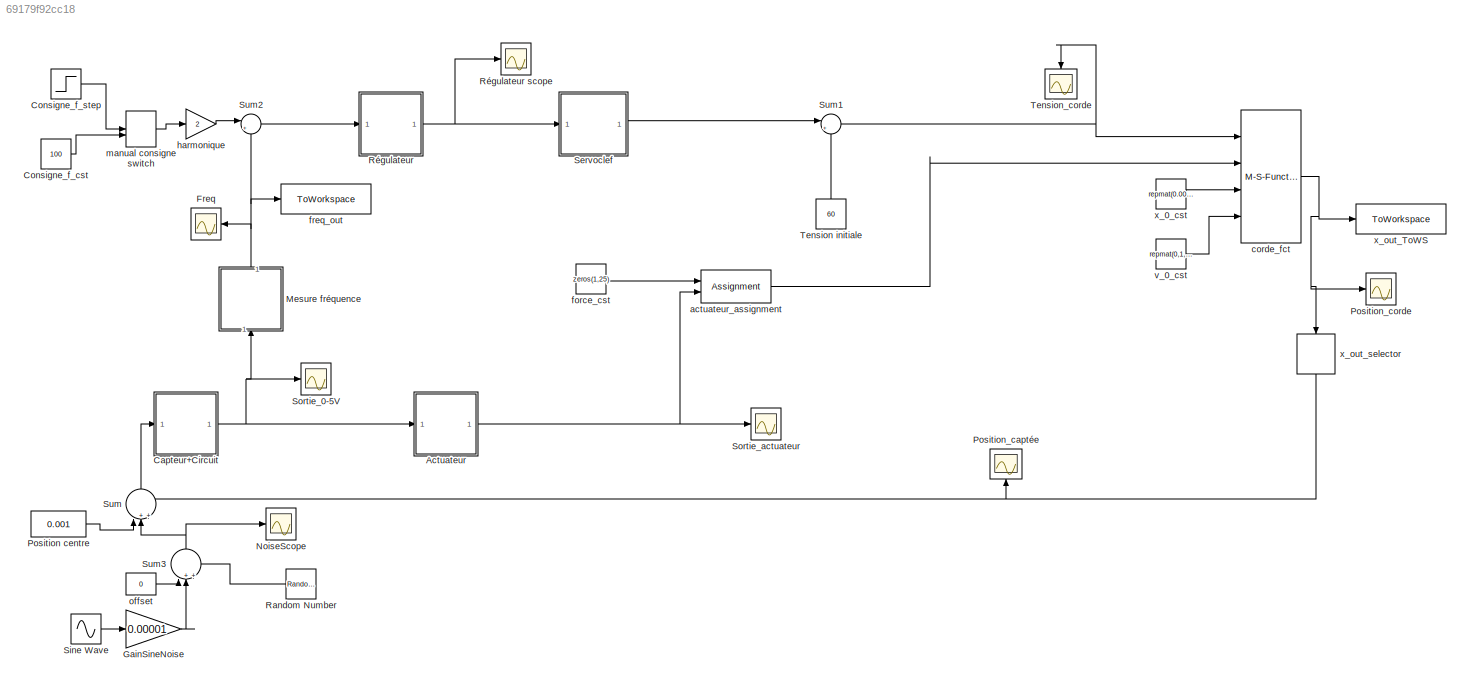
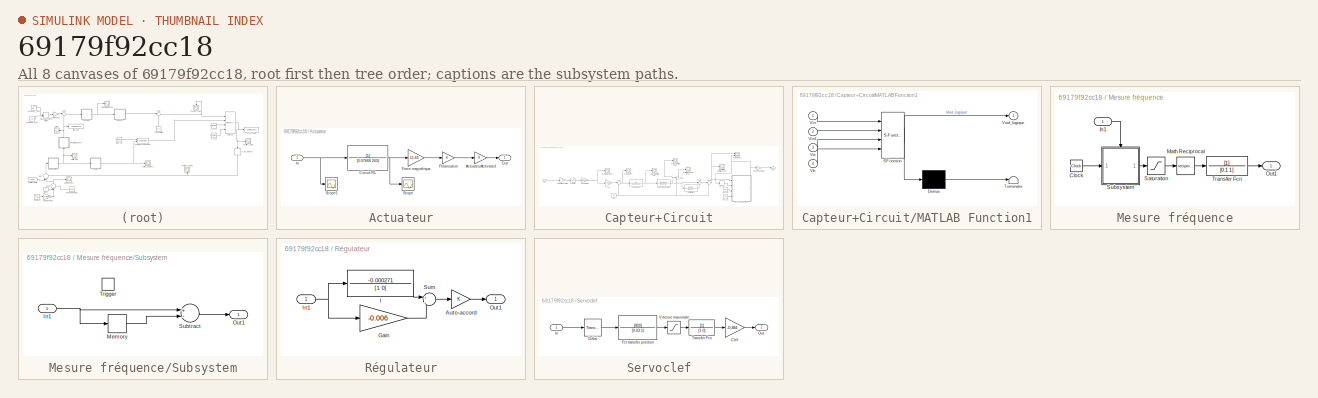
[diagram: thumbnail index - all 8 canvases of the model, root first then tree order]
MODEL slx_69179f92cc18
KIND model
CONFIG AbsTol = auto
CONFIG EnableMultiTasking = off
CONFIG FixedStep = 0.0001
CONFIG MaxStep = auto
CONFIG MinStep = auto
CONFIG RelTol = 1e-3
CONFIG SampleTimeConstraint = Unconstrained
CONFIG Solver = FixedStepAuto
CONFIG SolverName = FixedStepAuto
CONFIG StartTime = 0.0
CONFIG StopTime = 7
BLOCK [SubSystem] Actuateur
  Ports = [1, 1]
  RequestExecContextInheritance = off
BLOCK [Gain] Actuateur/ActuateurActivated
  OutDataTypeStr = Inherit: Inherit via internal rule
  ParamDataTypeStr = Inherit: Inherit via internal rule
  SaturateOnIntegerOverflow = off
BLOCK [TransferFcn] Actuateur/Circuit RL
  Denominator = [0.07668 263]
BLOCK [Gain] Actuateur/Force magnétique
  Gain = 11.65
  OutDataTypeStr = Inherit: Inherit via internal rule
  ParamDataTypeStr = Inherit: Inherit via internal rule
  SaturateOnIntegerOverflow = off
BLOCK [Inport] Actuateur/In
  IconDisplay = Port number
BLOCK [Outport] Actuateur/Out
  IconDisplay = Port number
BLOCK [Gain] Actuateur/Polarisation
  OutDataTypeStr = Inherit: Inherit via internal rule
  ParamDataTypeStr = Inherit: Inherit via internal rule
  SaturateOnIntegerOverflow = off
BLOCK [Scope] Actuateur/Scope
  Floating = off
  NumInputPorts = 1
  Ports = [1]
  ScopeSpecificationString = Simulink.scopes.TimeScopeBlockCfg('CurrentConfiguration', extmgr.ConfigurationSet(extmgr.Configuration('Core','General UI',true),extmgr.Configuration('Core','Source UI',true),extmgr.Configuration('Sources','WiredSimulink',true),extmgr.Configuration('Visuals','Time Domain',true,'SerializedDisplays',{struct('MinYLimReal','-0.00492','MaxYLimReal','0.02151','YLabelReal','','MinYLimMag','0.00000','MaxY...<+1405ch>
BLOCK [Scope] Actuateur/Scope1
  Floating = off
  NumInputPorts = 1
  Ports = [1]
  ScopeSpecificationString = Simulink.scopes.TimeScopeBlockCfg('CurrentConfiguration', extmgr.ConfigurationSet(extmgr.Configuration('Core','General UI',true),extmgr.Configuration('Core','Source UI',true),extmgr.Configuration('Sources','WiredSimulink',true,'DataLoggingVariableName','ScopeData1'),extmgr.Configuration('Visuals','Time Domain',true,'SerializedDisplays',{struct('MinYLimReal','-6.25','MaxYLimReal','6.25','YLabelReal...<+1419ch>
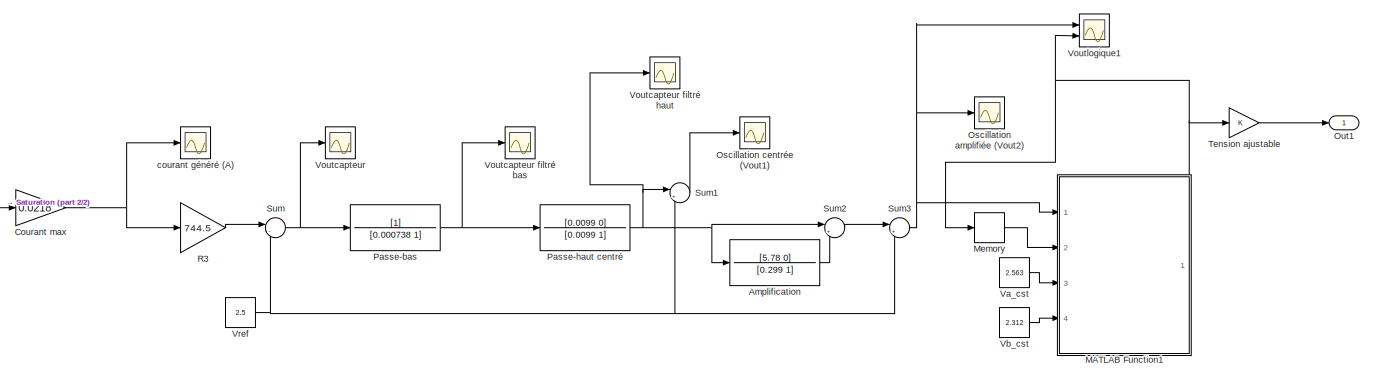
[diagram: Capteur+Circuit - part 1/2, most of the canvas]
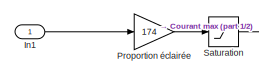
[diagram: Capteur+Circuit - part 2/2, middle left region]
BLOCK [SubSystem] Capteur+Circuit
  Ports = [1, 1]
  RequestExecContextInheritance = off
BLOCK [TransferFcn] Capteur+Circuit/Amplification 
  Denominator = [0.299 1]
  Numerator = [5.78 0]
BLOCK [Gain] Capteur+Circuit/Courant max
  Gain = 0.0218
  OutDataTypeStr = Inherit: Inherit via internal rule
  ParamDataTypeStr = Inherit: Inherit via internal rule
  SaturateOnIntegerOverflow = off
BLOCK [Inport] Capteur+Circuit/In1
  IconDisplay = Port number
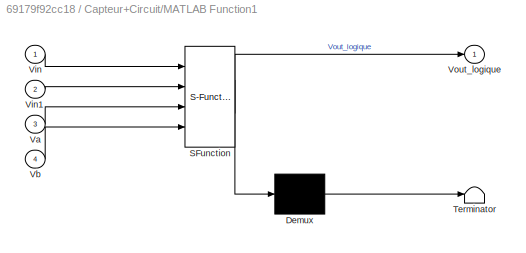
BLOCK [SubSystem] Capteur+Circuit/MATLAB Function1
  ErrorFcn = Stateflow.Translate.translate
  PermitHierarchicalResolution = ExplicitOnly
  Ports = [4, 1]
  RequestExecContextInheritance = off
  SFBlockType = MATLAB Function
  TreatAsAtomicUnit = on
BLOCK [Demux] Capteur+Circuit/MATLAB Function1/ Demux 
  Outputs = 1
  Ports = [1, 1]
BLOCK [S-Function] Capteur+Circuit/MATLAB Function1/ SFunction 
  EnableBusSupport = on
  FunctionName = sf_sfun
  PortCounts = [4 2]
  Ports = [4, 2]
  SFcnIsStateOwnerBlock = off
  SFunctionDeploymentMode = off
  Tag = Stateflow S-Function 1
BLOCK [Terminator] Capteur+Circuit/MATLAB Function1/ Terminator 
BLOCK [Inport] Capteur+Circuit/MATLAB Function1/Va
  IconDisplay = Port number
  Port = 3
BLOCK [Inport] Capteur+Circuit/MATLAB Function1/Vb
  IconDisplay = Port number
  Port = 4
BLOCK [Inport] Capteur+Circuit/MATLAB Function1/Vin
  IconDisplay = Port number
BLOCK [Inport] Capteur+Circuit/MATLAB Function1/Vin1
  IconDisplay = Port number
  Port = 2
BLOCK [Outport] Capteur+Circuit/MATLAB Function1/Vout_logique
  IconDisplay = Port number
BLOCK [Memory] Capteur+Circuit/Memory
BLOCK [Scope] Capteur+Circuit/Oscillation amplifiée (Vout2) 
  Floating = off
  NumInputPorts = 1
  Ports = [1]
  ScopeSpecificationString = Simulink.scopes.TimeScopeBlockCfg('CurrentConfiguration', extmgr.ConfigurationSet(extmgr.Configuration('Core','General UI',true),extmgr.Configuration('Core','Source UI',true),extmgr.Configuration('Sources','WiredSimulink',true,'DataLoggingVariableName','ScopeData1'),extmgr.Configuration('Visuals','Time Domain',true,'SerializedDisplays',{struct('MinYLimReal','2.4995','MaxYLimReal','2.50027','YLabel...<+1483ch>
BLOCK [Scope] Capteur+Circuit/Oscillation centrée (Vout1)
  Floating = off
  NumInputPorts = 1
  Ports = [1]
  ScopeSpecificationString = Simulink.scopes.TimeScopeBlockCfg('CurrentConfiguration', extmgr.ConfigurationSet(extmgr.Configuration('Core','General UI',true),extmgr.Configuration('Core','Source UI',true),extmgr.Configuration('Sources','WiredSimulink',true,'DataLoggingVariableName','ScopeData2'),extmgr.Configuration('Visuals','Time Domain',true,'SerializedDisplays',{struct('MinYLimReal','1.75493','MaxYLimReal','4.03396','YLabe...<+1432ch>
BLOCK [Outport] Capteur+Circuit/Out1
  IconDisplay = Port number
BLOCK [TransferFcn] Capteur+Circuit/Passe-bas
  Denominator = [0.000738 1]
BLOCK [TransferFcn] Capteur+Circuit/Passe-haut centré 
  Denominator = [0.0099 1]
  Numerator = [0.0099 0]
BLOCK [Gain] Capteur+Circuit/Proportion éclairée
  Gain = 174
  OutDataTypeStr = Inherit: Inherit via internal rule
  ParamDataTypeStr = Inherit: Inherit via internal rule
  SaturateOnIntegerOverflow = off
BLOCK [Gain] Capteur+Circuit/R3
  Gain = 744.5
  OutDataTypeStr = Inherit: Inherit via internal rule
  ParamDataTypeStr = Inherit: Inherit via internal rule
  SaturateOnIntegerOverflow = off
BLOCK [Saturate] Capteur+Circuit/Saturation
  InputPortMap = u0
  LowerLimit = 0
  Ports = [1, 1]
  UpperLimit = 0.497
BLOCK [Sum] Capteur+Circuit/Sum
  IconShape = round
  InputSameDT = off
  Inputs = |-+
  OutDataTypeStr = Inherit: Inherit via internal rule
  Ports = [2, 1]
  SaturateOnIntegerOverflow = off
BLOCK [Sum] Capteur+Circuit/Sum1
  IconShape = round
  InputSameDT = off
  Inputs = |++
  OutDataTypeStr = Inherit: Inherit via internal rule
  Ports = [2, 1]
  SaturateOnIntegerOverflow = off
BLOCK [Sum] Capteur+Circuit/Sum2
  IconShape = round
  InputSameDT = off
  Inputs = |++
  OutDataTypeStr = Inherit: Inherit via internal rule
  Ports = [2, 1]
  SaturateOnIntegerOverflow = off
BLOCK [Sum] Capteur+Circuit/Sum3
  IconShape = round
  InputSameDT = off
  Inputs = |++
  OutDataTypeStr = Inherit: Inherit via internal rule
  Ports = [2, 1]
  SaturateOnIntegerOverflow = off
BLOCK [Gain] Capteur+Circuit/Tension ajustable
  OutDataTypeStr = Inherit: Inherit via internal rule
  ParamDataTypeStr = Inherit: Inherit via internal rule
  SaturateOnIntegerOverflow = off
BLOCK [Constant] Capteur+Circuit/Va_cst 
  Value = 2.563
BLOCK [Constant] Capteur+Circuit/Vb_cst
  Value = 2.312
BLOCK [Scope] Capteur+Circuit/Voutcapteur 
  Floating = off
  NumInputPorts = 1
  Ports = [1]
  ScopeSpecificationString = Simulink.scopes.TimeScopeBlockCfg('CurrentConfiguration', extmgr.ConfigurationSet(extmgr.Configuration('Core','General UI',true),extmgr.Configuration('Core','Source UI',true),extmgr.Configuration('Sources','WiredSimulink',true,'DataLoggingVariableName','ScopeData3'),extmgr.Configuration('Visuals','Time Domain',true,'SerializedDisplays',{struct('MinYLimReal','-6.57465','MaxYLimReal','3.50829','YLab...<+1488ch>
BLOCK [Scope] Capteur+Circuit/Voutcapteur filtré bas
  Floating = off
  NumInputPorts = 1
  Ports = [1]
  ScopeSpecificationString = Simulink.scopes.TimeScopeBlockCfg('CurrentConfiguration', extmgr.ConfigurationSet(extmgr.Configuration('Core','General UI',true),extmgr.Configuration('Core','Source UI',true),extmgr.Configuration('Sources','WiredSimulink',true,'DataLoggingVariableName','ScopeData4'),extmgr.Configuration('Visuals','Time Domain',true,'SerializedDisplays',{struct('MinYLimReal','-5.61916','MaxYLimReal','1.39207','YLab...<+1467ch>
BLOCK [Scope] Capteur+Circuit/Voutcapteur filtré haut
  Floating = off
  NumInputPorts = 1
  Ports = [1]
  ScopeSpecificationString = Simulink.scopes.TimeScopeBlockCfg('CurrentConfiguration', extmgr.ConfigurationSet(extmgr.Configuration('Core','General UI',true),extmgr.Configuration('Core','Source UI',true),extmgr.Configuration('Sources','WiredSimulink',true,'DataLoggingVariableName','ScopeData5'),extmgr.Configuration('Visuals','Time Domain',true,'SerializedDisplays',{struct('MinYLimReal','-0.0776','MaxYLimReal','0.09565','YLabe...<+1445ch>
BLOCK [Scope] Capteur+Circuit/Voutlogique1
  Floating = off
  NumInputPorts = 2
  Ports = [2]
  ScopeSpecificationString = Simulink.scopes.TimeScopeBlockCfg('CurrentConfiguration', extmgr.ConfigurationSet(extmgr.Configuration('Core','General UI',true),extmgr.Configuration('Core','Source UI',true),extmgr.Configuration('Sources','WiredSimulink',true,'DataLoggingVariableName','ScopeData6'),extmgr.Configuration('Visuals','Time Domain',true,'SerializedDisplays',{struct('MinYLimReal','-87.77017','MaxYLimReal','15.3078','YLa...<+1818ch>
BLOCK [Constant] Capteur+Circuit/Vref 
  Value = 2.5
BLOCK [Scope] Capteur+Circuit/courant généré (A) 
  Floating = off
  NumInputPorts = 1
  Ports = [1]
  ScopeSpecificationString = Simulink.scopes.TimeScopeBlockCfg('CurrentConfiguration', extmgr.ConfigurationSet(extmgr.Configuration('Core','General UI',true),extmgr.Configuration('Core','Source UI',true),extmgr.Configuration('Sources','WiredSimulink',true,'DataLoggingVariableName','ScopeData7'),extmgr.Configuration('Visuals','Time Domain',true,'SerializedDisplays',{struct('MinYLimReal','-0.00135','MaxYLimReal','0.01219','YLab...<+1469ch>
BLOCK [Constant] Consigne_f_cst
  Value = 100
BLOCK [Step] Consigne_f_step
  After = 120
  Before = 100
  SampleTime = 0
  Time = 3
BLOCK [Scope] Freq
  Floating = off
  NumInputPorts = 1
  Ports = [1]
  ScopeSpecificationString = Simulink.scopes.TimeScopeBlockCfg('CurrentConfiguration', extmgr.ConfigurationSet(extmgr.Configuration('Core','General UI',true),extmgr.Configuration('Core','Source UI',true),extmgr.Configuration('Sources','WiredSimulink',true,'DataLoggingVariableName','ScopeData5'),extmgr.Configuration('Visuals','Time Domain',true,'SerializedDisplays',{struct('MinYLimReal','-40.81717','MaxYLimReal','367.3545','YL...<+1763ch>
BLOCK [Gain] GainSineNoise
  Gain = 0.00001
  OutDataTypeStr = Inherit: Inherit via internal rule
  ParamDataTypeStr = Inherit: Inherit via internal rule
  SaturateOnIntegerOverflow = off
BLOCK [SubSystem] Mesure fréquence
  Ports = [1, 1]
  RequestExecContextInheritance = off
BLOCK [Clock] Mesure fréquence/Clock
BLOCK [Inport] Mesure fréquence/In1
  IconDisplay = Port number
BLOCK [Math] Mesure fréquence/Math Reciprocal
  Operator = reciprocal
  Ports = [1, 1]
BLOCK [Outport] Mesure fréquence/Out1
  IconDisplay = Port number
BLOCK [Saturate] Mesure fréquence/Saturation
  InputPortMap = u0
  LowerLimit = 0.001
  Ports = [1, 1]
  UpperLimit = 1
BLOCK [SubSystem] Mesure fréquence/Subsystem
  Ports = [1, 1, 0, 1]
  RequestExecContextInheritance = off
BLOCK [Inport] Mesure fréquence/Subsystem/In1
  IconDisplay = Port number
BLOCK [Memory] Mesure fréquence/Subsystem/Memory
  InheritSampleTime = on
BLOCK [Outport] Mesure fréquence/Subsystem/Out1
  IconDisplay = Port number
BLOCK [Sum] Mesure fréquence/Subsystem/Subtract
  InputSameDT = off
  Inputs = +-
  OutDataTypeStr = Inherit: Inherit via internal rule
  Ports = [2, 1]
  SaturateOnIntegerOverflow = off
BLOCK [TriggerPort] Mesure fréquence/Subsystem/Trigger
  PortDimensions = 1
  Ports = []
  StatesWhenEnabling = held
  VariantControl = Variant
BLOCK [TransferFcn] Mesure fréquence/Transfer Fcn
  Denominator = [0.1 1]
BLOCK [Scope] NoiseScope
  Floating = off
  NumInputPorts = 1
  Ports = [1]
  ScopeSpecificationString = Simulink.scopes.TimeScopeBlockCfg('CurrentConfiguration', extmgr.ConfigurationSet(extmgr.Configuration('Core','General UI',true),extmgr.Configuration('Core','Source UI',true),extmgr.Configuration('Sources','WiredSimulink',true,'DataLoggingVariableName','ScopeData1'),extmgr.Configuration('Visuals','Time Domain',true),extmgr.Configuration('Tools','Plot Navigation',true),extmgr.Configuration('Tools',...<+40ch>
BLOCK [Constant] Position centre
  Value = 0.001
BLOCK [Scope] Position_captée
  Floating = off
  NumInputPorts = 1
  Ports = [1]
  ScopeSpecificationString = Simulink.scopes.TimeScopeBlockCfg('CurrentConfiguration', extmgr.ConfigurationSet(extmgr.Configuration('Core','General UI',true),extmgr.Configuration('Core','Source UI',true),extmgr.Configuration('Sources','WiredSimulink',true,'DataLoggingVariableName','ScopeData2'),extmgr.Configuration('Visuals','Time Domain',true,'SerializedDisplays',{struct('MinYLimReal','-0.00057','MaxYLimReal','0.00192','YLab...<+1770ch>
BLOCK [Scope] Position_corde
  Floating = off
  NumInputPorts = 1
  Ports = [1]
  ScopeSpecificationString = Simulink.scopes.TimeScopeBlockCfg('CurrentConfiguration', extmgr.ConfigurationSet(extmgr.Configuration('Core','General UI',true),extmgr.Configuration('Core','Source UI',true),extmgr.Configuration('Sources','WiredSimulink',true,'DataLoggingVariableName','ScopeData1'),extmgr.Configuration('Visuals','Time Domain',true,'SerializedDisplays',{struct('MinYLimReal','-0.00057','MaxYLimReal','0.00192','YLab...<+2167ch>
BLOCK [RandomNumber] Random Number
  SampleTime = 0.1
  Variance = 0
BLOCK [SubSystem] Régulateur
  Ports = [1, 1]
  RequestExecContextInheritance = off
BLOCK [Scope] Régulateur scope
  Floating = off
  NumInputPorts = 1
  Ports = [1]
  ScopeSpecificationString = Simulink.scopes.TimeScopeBlockCfg('CurrentConfiguration', extmgr.ConfigurationSet(extmgr.Configuration('Core','General UI',true),extmgr.Configuration('Core','Source UI',true),extmgr.Configuration('Sources','WiredSimulink',true,'DataLoggingVariableName','ScopeData2'),extmgr.Configuration('Visuals','Time Domain',true),extmgr.Configuration('Tools','Plot Navigation',true),extmgr.Configuration('Tools',...<+40ch>
BLOCK [Gain] Régulateur/Auto-accord
  OutDataTypeStr = Inherit: Inherit via internal rule
  ParamDataTypeStr = Inherit: Inherit via internal rule
  SaturateOnIntegerOverflow = off
BLOCK [Gain] Régulateur/Gain
  Gain = -0.006
  OutDataTypeStr = Inherit: Inherit via internal rule
  ParamDataTypeStr = Inherit: Inherit via internal rule
  SaturateOnIntegerOverflow = off
BLOCK [TransferFcn] Régulateur/I
  Denominator = [1 0]
  Numerator = -0.000271
BLOCK [Inport] Régulateur/In1
  IconDisplay = Port number
BLOCK [Outport] Régulateur/Out1
  IconDisplay = Port number
BLOCK [Sum] Régulateur/Sum
  IconShape = round
  InputSameDT = off
  Inputs = +|+
  OutDataTypeStr = Inherit: Inherit via internal rule
  Ports = [2, 1]
  SaturateOnIntegerOverflow = off
BLOCK [SubSystem] Servoclef
  Ports = [1, 1]
  RequestExecContextInheritance = off
BLOCK [Gain] Servoclef/Clef
  Gain = -0.384
  OutDataTypeStr = Inherit: Inherit via internal rule
  ParamDataTypeStr = Inherit: Inherit via internal rule
  SaturateOnIntegerOverflow = off
BLOCK [TransportDelay] Servoclef/Délai
  DelayTime = 0.01
  Ports = [1, 1]
BLOCK [TransferFcn] Servoclef/Fct transfer position
  Denominator = [0.03 1]
  Numerator = [800]
BLOCK [Inport] Servoclef/In
  IconDisplay = Port number
BLOCK [Outport] Servoclef/Out
  IconDisplay = Port number
BLOCK [TransferFcn] Servoclef/Transfer Fcn
  Denominator = [1 0]
BLOCK [Saturate] Servoclef/Vitesse maximale
  InputPortMap = u0
  LowerLimit = -1000
  Ports = [1, 1]
  UpperLimit = 1000
BLOCK [Sin] Sine Wave
  Amplitude = 0
  Frequency = 10
  Ports = [0, 1]
  SampleTime = 0
BLOCK [Scope] Sortie_0-5V
  Floating = off
  NumInputPorts = 1
  Ports = [1]
  ScopeSpecificationString = Simulink.scopes.TimeScopeBlockCfg('CurrentConfiguration', extmgr.ConfigurationSet(extmgr.Configuration('Core','General UI',true),extmgr.Configuration('Core','Source UI',true),extmgr.Configuration('Sources','WiredSimulink',true,'DataLoggingVariableName','ScopeData3'),extmgr.Configuration('Visuals','Time Domain',true,'SerializedDisplays',{struct('MinYLimReal','-0.625','MaxYLimReal','5.625','YLabelRe...<+1458ch>
BLOCK [Scope] Sortie_actuateur
  Floating = off
  NumInputPorts = 1
  Ports = [1]
  ScopeSpecificationString = Simulink.scopes.TimeScopeBlockCfg('CurrentConfiguration', extmgr.ConfigurationSet(extmgr.Configuration('Core','General UI',true),extmgr.Configuration('Core','Source UI',true),extmgr.Configuration('Sources','WiredSimulink',true,'DataLoggingVariableName','ScopeData4'),extmgr.Configuration('Visuals','Time Domain',true,'SerializedDisplays',{struct('MinYLimReal','-0.625','MaxYLimReal','5.625','YLabelRe...<+1452ch>
BLOCK [Sum] Sum
  IconShape = round
  InputSameDT = off
  Inputs = |+++
  OutDataTypeStr = Inherit: Inherit via internal rule
  Ports = [3, 1]
  SaturateOnIntegerOverflow = off
BLOCK [Sum] Sum1
  IconShape = round
  InputSameDT = off
  Inputs = |++
  OutDataTypeStr = Inherit: Inherit via internal rule
  Ports = [2, 1]
  SaturateOnIntegerOverflow = off
BLOCK [Sum] Sum2
  IconShape = round
  InputSameDT = off
  Inputs = |+-
  OutDataTypeStr = Inherit: Inherit via internal rule
  Ports = [2, 1]
  SaturateOnIntegerOverflow = off
BLOCK [Sum] Sum3
  IconShape = round
  InputSameDT = off
  Inputs = |+++
  OutDataTypeStr = Inherit: Inherit via internal rule
  Ports = [3, 1]
  SaturateOnIntegerOverflow = off
BLOCK [Constant] Tension initiale
  Value = 60
BLOCK [Scope] Tension_corde
  Floating = off
  NumInputPorts = 1
  Ports = [1]
  ScopeSpecificationString = Simulink.scopes.TimeScopeBlockCfg('CurrentConfiguration', extmgr.ConfigurationSet(extmgr.Configuration('Core','General UI',true),extmgr.Configuration('Core','Source UI',true),extmgr.Configuration('Sources','WiredSimulink',true,'DataLoggingVariableName','ScopeData1'),extmgr.Configuration('Visuals','Time Domain',true,'SerializedDisplays',{struct('MinYLimReal','-40.81717','MaxYLimReal','367.3545','YL...<+1742ch>
BLOCK [Assignment] actuateur_assignment
  DiagnosticForDimensions = Warning
  IndexOptions = Starting index (dialog)
  Indices = 20
  OutputSizes = 1
  Ports = [2, 1]
BLOCK [M-S-Function] corde_fct
  FunctionName = CordeBySegment_SetupSimulink
  Parameters = 3.250000e-03, 4.430000e-01, 3.260000e-02, 25, 1.000000e-04
  Ports = [4, 1]
BLOCK [Constant] force_cst
  Value = zeros(1,25)
BLOCK [ToWorkspace] freq_out
  FixptAsFi = on
  MaxDataPoints = inf
  Ports = [1]
  SampleTime = -1
  SaveFormat = Timeseries
  VariableName = freq
BLOCK [Gain] harmonique
  Gain = 2
  OutDataTypeStr = Inherit: Inherit via internal rule
  ParamDataTypeStr = Inherit: Inherit via internal rule
  SaturateOnIntegerOverflow = off
BLOCK [ManualSwitch] manual consigne switch
BLOCK [Constant] offset
  Value = 0
BLOCK [Constant] v_0_cst
  Value = repmat(0,1,25)
BLOCK [Constant] x_0_cst
  Value = repmat(0.001,1,25)
BLOCK [ToWorkspace] x_out_ToWS
  FixptAsFi = on
  MaxDataPoints = inf
  Ports = [1]
  SampleTime = -1
  SaveFormat = Timeseries
  VariableName = corde_mesure
BLOCK [Selector] x_out_selector
  IndexOptions = Starting index (dialog)
  Indices = 7
  OutputSizes = 1
  Ports = [1, 1]
LINE Actuateur/ActuateurActivated:1 -> Actuateur/Out:1
NET Actuateur/Circuit RL:1 -> Actuateur/Force magnétique:1, Actuateur/Scope:1
LINE Actuateur/Force magnétique:1 -> Actuateur/Polarisation:1
NET Actuateur/In:1 -> Actuateur/Circuit RL:1, Actuateur/Scope1:1
LINE Actuateur/Polarisation:1 -> Actuateur/ActuateurActivated:1
NET Actuateur:1 -> Sortie_actuateur:1, actuateur_assignment:2
LINE Capteur+Circuit/Amplification :1 -> Capteur+Circuit/Sum2:2
NET Capteur+Circuit/Courant max:1 -> Capteur+Circuit/R3:1, Capteur+Circuit/courant généré (A) :1
LINE Capteur+Circuit/In1:1 -> Capteur+Circuit/Proportion éclairée:1
NET Capteur+Circuit/MATLAB Function1:1 -> Capteur+Circuit/Memory:1, Capteur+Circuit/Tension ajustable:1, Capteur+Circuit/Voutlogique1:2
LINE Capteur+Circuit/Memory:1 -> Capteur+Circuit/MATLAB Function1:2
NET Capteur+Circuit/Passe-bas:1 -> Capteur+Circuit/Passe-haut centré :1, Capteur+Circuit/Voutcapteur filtré bas:1
NET Capteur+Circuit/Passe-haut centré :1 -> Capteur+Circuit/Amplification :1, Capteur+Circuit/Sum1:1, Capteur+Circuit/Sum2:1, Capteur+Circuit/Voutcapteur filtré haut:1
LINE Capteur+Circuit/Proportion éclairée:1 -> Capteur+Circuit/Saturation:1
LINE Capteur+Circuit/R3:1 -> Capteur+Circuit/Sum:1
LINE Capteur+Circuit/Saturation:1 -> Capteur+Circuit/Courant max:1
LINE Capteur+Circuit/Sum1:1 -> Capteur+Circuit/Oscillation centrée (Vout1):1
LINE Capteur+Circuit/Sum2:1 -> Capteur+Circuit/Sum3:1
NET Capteur+Circuit/Sum3:1 -> Capteur+Circuit/MATLAB Function1:1, Capteur+Circuit/Oscillation amplifiée (Vout2) :1, Capteur+Circuit/Voutlogique1:1
NET Capteur+Circuit/Sum:1 -> Capteur+Circuit/Passe-bas:1, Capteur+Circuit/Voutcapteur :1
LINE Capteur+Circuit/Tension ajustable:1 -> Capteur+Circuit/Out1:1
LINE Capteur+Circuit/Va_cst :1 -> Capteur+Circuit/MATLAB Function1:3
LINE Capteur+Circuit/Vb_cst:1 -> Capteur+Circuit/MATLAB Function1:4
NET Capteur+Circuit/Vref :1 -> Capteur+Circuit/Sum1:2, Capteur+Circuit/Sum3:2, Capteur+Circuit/Sum:2
NET Capteur+Circuit:1 -> Actuateur:1, Mesure fréquence:1, Sortie_0-5V:1
LINE Consigne_f_cst:1 -> manual consigne switch:2
LINE Consigne_f_step:1 -> manual consigne switch:1
LINE GainSineNoise:1 -> Sum3:2
LINE Mesure fréquence/Clock:1 -> Mesure fréquence/Subsystem:1
LINE Mesure fréquence/In1:1 -> Mesure fréquence/Subsystem:trigger
LINE Mesure fréquence/Math Reciprocal:1 -> Mesure fréquence/Transfer Fcn:1
LINE Mesure fréquence/Saturation:1 -> Mesure fréquence/Math Reciprocal:1
NET Mesure fréquence/Subsystem/In1:1 -> Mesure fréquence/Subsystem/Memory:1, Mesure fréquence/Subsystem/Subtract:1
LINE Mesure fréquence/Subsystem/Memory:1 -> Mesure fréquence/Subsystem/Subtract:2
LINE Mesure fréquence/Subsystem/Subtract:1 -> Mesure fréquence/Subsystem/Out1:1
LINE Mesure fréquence/Subsystem:1 -> Mesure fréquence/Saturation:1
LINE Mesure fréquence/Transfer Fcn:1 -> Mesure fréquence/Out1:1
NET Mesure fréquence:1 -> Freq:1, Sum2:2, freq_out:1
LINE Position centre:1 -> Sum:1
LINE Random Number:1 -> Sum3:3
LINE Régulateur/Auto-accord:1 -> Régulateur/Out1:1
LINE Régulateur/Gain:1 -> Régulateur/Sum:2
LINE Régulateur/I:1 -> Régulateur/Sum:1
NET Régulateur/In1:1 -> Régulateur/Gain:1, Régulateur/I:1
LINE Régulateur/Sum:1 -> Régulateur/Auto-accord:1
NET Régulateur:1 -> Régulateur scope:1, Servoclef:1
LINE Servoclef/Clef:1 -> Servoclef/Out:1
LINE Servoclef/Délai:1 -> Servoclef/Fct transfer position:1
LINE Servoclef/Fct transfer position:1 -> Servoclef/Vitesse maximale:1
LINE Servoclef/In:1 -> Servoclef/Délai:1
LINE Servoclef/Transfer Fcn:1 -> Servoclef/Clef:1
LINE Servoclef/Vitesse maximale:1 -> Servoclef/Transfer Fcn:1
LINE Servoclef:1 -> Sum1:1
LINE Sine Wave:1 -> GainSineNoise:1
NET Sum1:1 -> Tension_corde:1, corde_fct:1
LINE Sum2:1 -> Régulateur:1
NET Sum3:1 -> NoiseScope:1, Sum:2
LINE Sum:1 -> Capteur+Circuit:1
LINE Tension initiale:1 -> Sum1:2
LINE actuateur_assignment:1 -> corde_fct:2
NET corde_fct:1 -> Position_corde:1, x_out_ToWS:1, x_out_selector:1
LINE force_cst:1 -> actuateur_assignment:1
LINE harmonique:1 -> Sum2:1
LINE manual consigne switch:1 -> harmonique:1
LINE offset:1 -> Sum3:1
LINE v_0_cst:1 -> corde_fct:4
LINE x_0_cst:1 -> corde_fct:3
NET x_out_selector:1 -> Position_captée:1, Sum:3
note: NET lines group one-source signal fan-out (src -> all destinations, sorted); 1:1 wires keep LINE
CHART Capteur+Circuit/MATLAB Function1 states=1 transitions=1
  STATE_LABEL 'eML_blk_kernel()'
  STATE_LABEL 'SCRIPT:\nfunction Vout_logique = fcn(Vin, Vin1 , Va, Vb)\nVout_logique = Vin1;\nif Vin > Va && Vin1 == 5\n    Vout_logique = 0;\nend\nif Vin < Vb && Vin1 == 0\n    Vout_logique = 5;\nend\nend\n \n'
